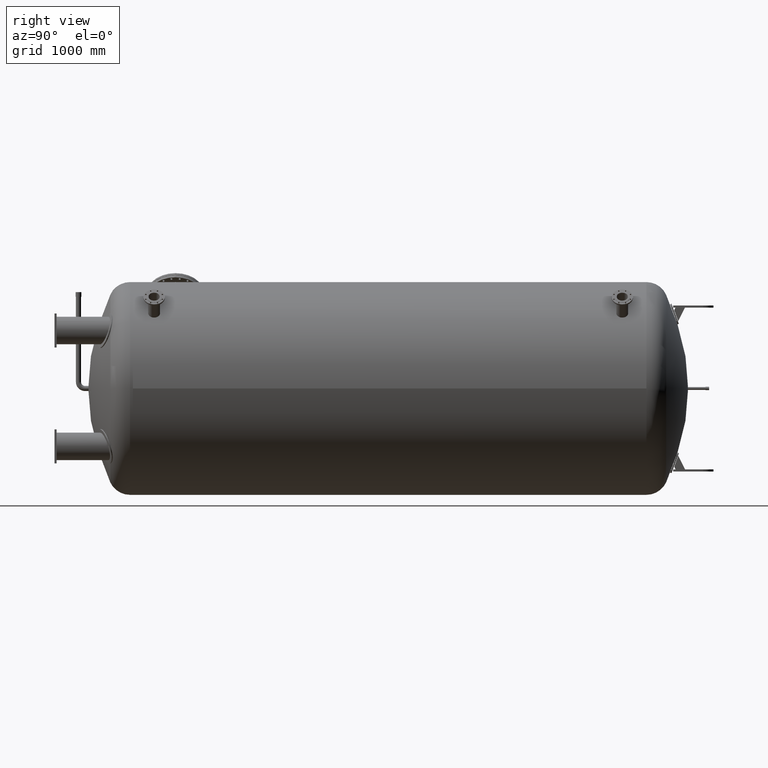
[diagram: clean part render]
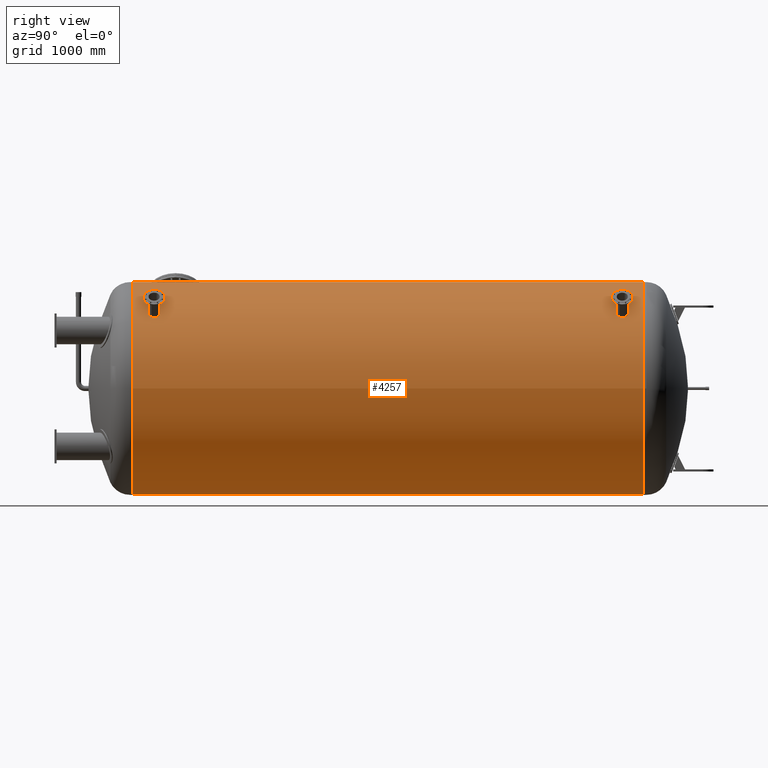
[diagram: same view with one face highlighted and labeled with its STEP entity id]
A machine part, right view. The second image highlights one B-rep face of the part: STEP entity #4257.
In plain terms, the highlighted cylindrical surface (bore or boss wall) has radius 1250 mm, axis along (0, 1, 0).
Its self-contained STEP definition (entity closure, byte-faithful):
#168=B_SPLINE_CURVE_WITH_KNOTS('',3,(#6908,#6909,#6910,#6911,#6912,#6913,
#6914,#6915,#6916,#6917,#6918,#6919,#6920,#6921,#6922,#6923,#6924,#6925),
 .UNSPECIFIED.,.F.,.F.,(4,2,2,2,2,2,2,2,4),(2.02659120059092,2.53323900062413,
3.03988680065735,3.54653460091959,4.05318240118183,4.55983020144407,5.06647800170632,
5.57312580173953,6.07977360177275),.UNSPECIFIED.);
#171=B_SPLINE_CURVE_WITH_KNOTS('',3,(#6965,#6966,#6967,#6968,#6969,#6970,
#6971,#6972,#6973,#6974,#6975,#6976,#6977,#6978,#6979,#6980,#6981,#6982,
#6983),.UNSPECIFIED.,.F.,.F.,(4,2,2,2,3,2,2,2,4),(6.07977360177275,6.58642140180597,
7.09306920183918,7.59971700210142,8.10636480236367,8.61301260262591,9.11966040288815,
9.62630820292137,10.1329560029546),.UNSPECIFIED.);
#172=B_SPLINE_CURVE_WITH_KNOTS('',3,(#6987,#6988,#6989,#6990,#6991,#6992,
#6993,#6994,#6995,#6996,#6997,#6998,#6999,#7000,#7001,#7002,#7003,#7004),
 .UNSPECIFIED.,.F.,.F.,(4,2,2,2,2,2,2,2,4),(2.02659120059092,2.53323900062413,
3.03988680065735,3.54653460091959,4.05318240118183,4.55983020144407,5.06647800170632,
5.57312580173953,6.07977360177275),.UNSPECIFIED.);
#175=B_SPLINE_CURVE_WITH_KNOTS('',3,(#7044,#7045,#7046,#7047,#7048,#7049,
#7050,#7051,#7052,#7053,#7054,#7055,#7056,#7057,#7058,#7059,#7060,#7061,
#7062),.UNSPECIFIED.,.F.,.F.,(4,2,2,2,3,2,2,2,4),(6.07977360177275,6.58642140180597,
7.09306920183918,7.59971700210142,8.10636480236367,8.61301260262591,9.11966040288815,
9.62630820292137,10.1329560029546),.UNSPECIFIED.);
#176=B_SPLINE_CURVE_WITH_KNOTS('',3,(#7066,#7067,#7068,#7069,#7070,#7071,
#7072,#7073,#7074,#7075,#7076,#7077,#7078,#7079,#7080,#7081,#7082,#7083),
 .UNSPECIFIED.,.F.,.F.,(4,2,2,2,2,2,2,2,4),(2.02659120059087,2.53323900062408,
3.03988680065729,3.54653460091952,4.05318240118175,4.559830201444,5.06647800170625,
5.57312580173947,6.07977360177269),.UNSPECIFIED.);
#179=B_SPLINE_CURVE_WITH_KNOTS('',3,(#7123,#7124,#7125,#7126,#7127,#7128,
#7129,#7130,#7131,#7132,#7133,#7134,#7135,#7136,#7137,#7138,#7139,#7140,
#7141),.UNSPECIFIED.,.F.,.F.,(4,2,2,2,3,2,2,2,4),(6.07977360177269,6.5864214018059,
7.09306920183912,7.59971700210137,8.10636480236363,8.61301260262586,9.11966040288809,
9.62630820292129,10.1329560029545),.UNSPECIFIED.);
#180=B_SPLINE_CURVE_WITH_KNOTS('',3,(#7145,#7146,#7147,#7148,#7149,#7150,
#7151,#7152,#7153,#7154,#7155,#7156,#7157,#7158,#7159,#7160,#7161,#7162),
 .UNSPECIFIED.,.F.,.F.,(4,2,2,2,2,2,2,2,4),(2.02659120059092,2.53323900062413,
3.03988680065735,3.54653460091959,4.05318240118183,4.55983020144407,5.06647800170632,
5.57312580173953,6.07977360177275),.UNSPECIFIED.);
#183=B_SPLINE_CURVE_WITH_KNOTS('',3,(#7202,#7203,#7204,#7205,#7206,#7207,
#7208,#7209,#7210,#7211,#7212,#7213,#7214,#7215,#7216,#7217,#7218,#7219,
#7220),.UNSPECIFIED.,.F.,.F.,(4,2,2,2,3,2,2,2,4),(6.07977360177275,6.58642140180597,
7.09306920183918,7.59971700210142,8.10636480236367,8.61301260262591,9.11966040288815,
9.62630820292137,10.1329560029546),.UNSPECIFIED.);
#184=B_SPLINE_CURVE_WITH_KNOTS('',3,(#7224,#7225,#7226,#7227,#7228,#7229,
#7230,#7231,#7232,#7233,#7234,#7235,#7236,#7237,#7238,#7239,#7240,#7241),
 .UNSPECIFIED.,.F.,.F.,(4,2,2,2,2,2,2,2,4),(2.02659120059089,2.53323900062409,
3.03988680065729,3.54653460091954,4.05318240118178,4.55983020144402,5.06647800170626,
5.5731258017395,6.07977360177274),.UNSPECIFIED.);
#187=B_SPLINE_CURVE_WITH_KNOTS('',3,(#7281,#7282,#7283,#7284,#7285,#7286,
#7287,#7288,#7289,#7290,#7291,#7292,#7293,#7294,#7295,#7296,#7297,#7298,
#7299),.UNSPECIFIED.,.F.,.F.,(4,2,2,2,3,2,2,2,4),(6.07977360177274,6.58642140180597,
7.09306920183921,7.59971700210145,8.10636480236369,8.61301260262594,9.11966040288819,
9.62630820292139,10.1329560029546),.UNSPECIFIED.);
#188=B_SPLINE_CURVE_WITH_KNOTS('',3,(#7303,#7304,#7305,#7306,#7307,#7308,
#7309,#7310,#7311,#7312,#7313,#7314,#7315,#7316,#7317,#7318,#7319,#7320,
#7321,#7322,#7323,#7324,#7325,#7326,#7327,#7328,#7329,#7330,#7331,#7332,
#7333,#7334,#7335,#7336),.UNSPECIFIED.,.F.,.F.,(4,2,2,2,2,2,2,2,2,2,2,2,
2,2,2,2,4),(10.5269783282456,11.842850402322,13.1587224763984,14.4745945504747,
15.7904666245511,17.1063391325361,18.4222116405212,19.7380841485062,21.0539566564912,
22.3698291644762,23.6857016724612,25.0015741804462,26.3174466884312,27.6333187625076,
28.949190836584,30.2650629106604,31.5809349847368),.UNSPECIFIED.);
#191=B_SPLINE_CURVE_WITH_KNOTS('',3,(#7408,#7409,#7410,#7411,#7412,#7413,
#7414,#7415,#7416,#7417,#7418,#7419,#7420,#7421,#7422,#7423,#7424,#7425,
#7426,#7427,#7428,#7429,#7430,#7431,#7432,#7433,#7434,#7435,#7436,#7437,
#7438,#7439,#7440,#7441,#7442),.UNSPECIFIED.,.F.,.F.,(4,2,2,2,2,2,2,2,3,
2,2,2,2,2,2,2,4),(31.5809349847368,32.8968070588131,34.2126791328895,35.5285512069659,
36.8444232810423,38.1602957890273,39.4761682970123,40.7920408049973,42.1079133129824,
43.4237858209674,44.7396583289524,46.0555308369374,47.3714033449224,48.6872754189988,
50.0031474930752,51.3190195671516,52.634891641228),.UNSPECIFIED.);
#192=B_SPLINE_CURVE_WITH_KNOTS('',3,(#7446,#7447,#7448,#7449,#7450,#7451,
#7452,#7453,#7454,#7455,#7456,#7457,#7458,#7459,#7460,#7461,#7462,#7463,
#7464,#7465,#7466,#7467,#7468,#7469,#7470,#7471,#7472,#7473,#7474,#7475,
#7476,#7477,#7478,#7479),.UNSPECIFIED.,.F.,.F.,(4,2,2,2,2,2,2,2,2,2,2,2,
2,2,2,2,4),(10.5269783282456,11.842850402322,13.1587224763984,14.4745945504748,
15.7904666245511,17.1063391325362,18.4222116405212,19.7380841485062,21.0539566564912,
22.3698291644763,23.6857016724613,25.0015741804463,26.3174466884314,27.6333187625077,
28.9491908365841,30.2650629106605,31.5809349847369),.UNSPECIFIED.);
#195=B_SPLINE_CURVE_WITH_KNOTS('',3,(#7551,#7552,#7553,#7554,#7555,#7556,
#7557,#7558,#7559,#7560,#7561,#7562,#7563,#7564,#7565,#7566,#7567,#7568,
#7569,#7570,#7571,#7572,#7573,#7574,#7575,#7576,#7577,#7578,#7579,#7580,
#7581,#7582,#7583,#7584,#7585),.UNSPECIFIED.,.F.,.F.,(4,2,2,2,2,2,2,2,3,
2,2,2,2,2,2,2,4),(31.5809349847369,32.8968070588132,34.2126791328896,35.528551206966,
36.8444232810424,38.1602957890274,39.4761682970124,40.7920408049975,42.1079133129825,
43.4237858209675,44.7396583289525,46.0555308369376,47.3714033449226,48.687275418999,
50.0031474930754,51.3190195671517,52.6348916412281),.UNSPECIFIED.);
#196=B_SPLINE_CURVE_WITH_KNOTS('',3,(#7589,#7590,#7591,#7592,#7593,#7594,
#7595,#7596,#7597,#7598,#7599,#7600,#7601,#7602,#7603,#7604,#7605,#7606,
#7607,#7608,#7609,#7610,#7611,#7612,#7613,#7614,#7615,#7616,#7617,#7618,
#7619,#7620,#7621,#7622),.UNSPECIFIED.,.F.,.F.,(4,2,2,2,2,2,2,2,2,2,2,2,
2,2,2,2,4),(10.5269783282456,11.842850402322,13.1587224763984,14.4745945504747,
15.7904666245511,17.1063391325361,18.4222116405212,19.7380841485062,21.0539566564912,
22.3698291644762,23.6857016724612,25.0015741804462,26.3174466884312,27.6333187625076,
28.949190836584,30.2650629106604,31.5809349847368),.UNSPECIFIED.);
#199=B_SPLINE_CURVE_WITH_KNOTS('',3,(#7694,#7695,#7696,#7697,#7698,#7699,
#7700,#7701,#7702,#7703,#7704,#7705,#7706,#7707,#7708,#7709,#7710,#7711,
#7712,#7713,#7714,#7715,#7716,#7717,#7718,#7719,#7720,#7721,#7722,#7723,
#7724,#7725,#7726,#7727,#7728),.UNSPECIFIED.,.F.,.F.,(4,2,2,2,2,2,2,2,3,
2,2,2,2,2,2,2,4),(31.5809349847368,32.8968070588131,34.2126791328895,35.5285512069659,
36.8444232810423,38.1602957890273,39.4761682970123,40.7920408049973,42.1079133129824,
43.4237858209674,44.7396583289524,46.0555308369374,47.3714033449224,48.6872754189988,
50.0031474930752,51.3190195671516,52.634891641228),.UNSPECIFIED.);
#200=B_SPLINE_CURVE_WITH_KNOTS('',3,(#7732,#7733,#7734,#7735,#7736,#7737,
#7738,#7739,#7740,#7741,#7742,#7743,#7744,#7745,#7746,#7747,#7748,#7749,
#7750,#7751,#7752,#7753,#7754,#7755,#7756,#7757,#7758,#7759,#7760,#7761,
#7762,#7763,#7764,#7765),.UNSPECIFIED.,.F.,.F.,(4,2,2,2,2,2,2,2,2,2,2,2,
2,2,2,2,4),(10.5269783282456,11.842850402322,13.1587224763984,14.4745945504748,
15.7904666245511,17.1063391325362,18.4222116405212,19.7380841485062,21.0539566564912,
22.3698291644763,23.6857016724613,25.0015741804463,26.3174466884314,27.6333187625077,
28.9491908365841,30.2650629106605,31.5809349847369),.UNSPECIFIED.);
#203=B_SPLINE_CURVE_WITH_KNOTS('',3,(#7837,#7838,#7839,#7840,#7841,#7842,
#7843,#7844,#7845,#7846,#7847,#7848,#7849,#7850,#7851,#7852,#7853,#7854,
#7855,#7856,#7857,#7858,#7859,#7860,#7861,#7862,#7863,#7864,#7865,#7866,
#7867,#7868,#7869,#7870,#7871),.UNSPECIFIED.,.F.,.F.,(4,2,2,2,2,2,2,2,3,
2,2,2,2,2,2,2,4),(31.5809349847369,32.8968070588132,34.2126791328896,35.528551206966,
36.8444232810424,38.1602957890274,39.4761682970124,40.7920408049975,42.1079133129825,
43.4237858209675,44.7396583289525,46.0555308369376,47.3714033449226,48.687275418999,
50.0031474930754,51.3190195671517,52.6348916412281),.UNSPECIFIED.);
#204=B_SPLINE_CURVE_WITH_KNOTS('',3,(#7875,#7876,#7877,#7878,#7879,#7880,
#7881,#7882,#7883,#7884,#7885,#7886,#7887,#7888,#7889,#7890,#7891,#7892,
#7893,#7894,#7895,#7896,#7897,#7898,#7899,#7900,#7901,#7902,#7903,#7904,
#7905,#7906,#7907,#7908,#7909,#7910,#7911,#7912,#7913,#7914,#7915,#7916,
#7917,#7918,#7919,#7920,#7921,#7922,#7923,#7924,#7925,#7926,#7927,#7928,
#7929,#7930,#7931,#7932,#7933,#7934,#7935,#7936,#7937,#7938,#7939,#7940),
 .UNSPECIFIED.,.F.,.F.,(4,2,2,2,2,2,2,2,2,2,2,2,2,2,2,2,2,2,2,2,2,2,2,2,
2,2,2,2,2,2,2,2,4),(38.3865947959878,40.7856852553044,43.184775714621,45.5838661739376,
47.9829566332542,50.3820470925708,52.7811375518874,55.180228011204,57.5793184705206,
59.9785523607025,62.3777862508843,64.7770201410662,67.1762540312481,69.57548792143,
71.9747218116119,74.3739557017938,76.7731895919757,79.1724234821576,81.5716573723395,
83.9708912625214,86.3701251527033,88.7693590428851,91.168592933067,93.5678268232489,
95.9670607134308,98.3661511727474,100.765241632064,103.164332091381,105.563422550697,
107.962513010014,110.36160346933,112.760693928647,115.159784387964),
 .UNSPECIFIED.);
#207=B_SPLINE_CURVE_WITH_KNOTS('',3,(#8076,#8077,#8078,#8079,#8080,#8081,
#8082,#8083,#8084,#8085,#8086,#8087,#8088,#8089,#8090,#8091,#8092,#8093,
#8094,#8095,#8096,#8097,#8098,#8099,#8100,#8101,#8102,#8103,#8104,#8105,
#8106,#8107,#8108,#8109,#8110,#8111,#8112,#8113,#8114,#8115,#8116,#8117,
#8118,#8119,#8120,#8121,#8122,#8123,#8124,#8125,#8126,#8127,#8128,#8129,
#8130,#8131,#8132,#8133,#8134,#8135,#8136,#8137,#8138,#8139,#8140,#8141,
#8142),.UNSPECIFIED.,.F.,.F.,(4,2,2,2,2,2,2,2,2,2,2,2,2,2,2,2,3,2,2,2,2,
2,2,2,2,2,2,2,2,2,2,2,4),(115.159784387964,117.55887484728,119.957965306597,
122.357055765913,124.75614622523,127.155236684546,129.554327143863,131.95341760318,
134.352508062496,136.751741952678,139.15097584286,141.550209733042,143.949443623224,
146.348677513406,148.747911403588,151.147145293769,153.546379183951,155.945613074133,
158.344846964315,160.744080854497,163.143314744679,165.542548634861,167.941782525043,
170.341016415225,172.740250305407,175.139340764723,177.53843122404,179.937521683356,
182.336612142673,184.735702601989,187.134793061306,189.533883520623,191.932973979939),
 .UNSPECIFIED.);
#410=FACE_BOUND('',#847,.T.);
#411=FACE_BOUND('',#848,.T.);
#412=FACE_BOUND('',#849,.T.);
#413=FACE_BOUND('',#850,.T.);
#414=FACE_BOUND('',#851,.T.);
#415=FACE_BOUND('',#852,.T.);
#416=FACE_BOUND('',#853,.T.);
#417=FACE_BOUND('',#854,.T.);
#418=FACE_BOUND('',#855,.T.);
#419=FACE_BOUND('',#856,.T.);
#602=FACE_OUTER_BOUND('',#846,.T.);
#846=EDGE_LOOP('',(#3031,#3032,#3033,#3034,#3035,#3036));
#847=EDGE_LOOP('',(#3037,#3038));
#848=EDGE_LOOP('',(#3039,#3040));
#849=EDGE_LOOP('',(#3041,#3042));
#850=EDGE_LOOP('',(#3043,#3044));
#851=EDGE_LOOP('',(#3045,#3046));
#852=EDGE_LOOP('',(#3047,#3048));
#853=EDGE_LOOP('',(#3049,#3050));
#854=EDGE_LOOP('',(#3051,#3052));
#855=EDGE_LOOP('',(#3053,#3054));
#856=EDGE_LOOP('',(#3055,#3056));
#1226=LINE('',#8163,#1452);
#1452=VECTOR('',#5607,1250.);
#1686=CIRCLE('',#4969,1250.);
#1687=CIRCLE('',#4970,1250.);
#1688=CIRCLE('',#4972,1250.);
#1689=CIRCLE('',#4973,1250.);
#1953=VERTEX_POINT('',#6906);
#1954=VERTEX_POINT('',#6907);
#1957=VERTEX_POINT('',#6985);
#1958=VERTEX_POINT('',#6986);
#1961=VERTEX_POINT('',#7064);
#1962=VERTEX_POINT('',#7065);
#1965=VERTEX_POINT('',#7143);
#1966=VERTEX_POINT('',#7144);
#1969=VERTEX_POINT('',#7222);
#1970=VERTEX_POINT('',#7223);
#1973=VERTEX_POINT('',#7301);
#1974=VERTEX_POINT('',#7302);
#1977=VERTEX_POINT('',#7444);
#1978=VERTEX_POINT('',#7445);
#1981=VERTEX_POINT('',#7587);
#1982=VERTEX_POINT('',#7588);
#1985=VERTEX_POINT('',#7730);
#1986=VERTEX_POINT('',#7731);
#1989=VERTEX_POINT('',#7873);
#1990=VERTEX_POINT('',#7874);
#1997=VERTEX_POINT('',#8154);
#1998=VERTEX_POINT('',#8155);
#1999=VERTEX_POINT('',#8159);
#2000=VERTEX_POINT('',#8160);
#2351=EDGE_CURVE('',#1953,#1954,#168,.T.);
#2355=EDGE_CURVE('',#1954,#1953,#171,.T.);
#2356=EDGE_CURVE('',#1957,#1958,#172,.T.);
#2360=EDGE_CURVE('',#1958,#1957,#175,.T.);
#2361=EDGE_CURVE('',#1961,#1962,#176,.T.);
#2365=EDGE_CURVE('',#1962,#1961,#179,.T.);
#2366=EDGE_CURVE('',#1965,#1966,#180,.T.);
#2370=EDGE_CURVE('',#1966,#1965,#183,.T.);
#2371=EDGE_CURVE('',#1969,#1970,#184,.T.);
#2375=EDGE_CURVE('',#1970,#1969,#187,.T.);
#2376=EDGE_CURVE('',#1973,#1974,#188,.T.);
#2380=EDGE_CURVE('',#1974,#1973,#191,.T.);
#2381=EDGE_CURVE('',#1977,#1978,#192,.T.);
#2385=EDGE_CURVE('',#1978,#1977,#195,.T.);
#2386=EDGE_CURVE('',#1981,#1982,#196,.T.);
#2390=EDGE_CURVE('',#1982,#1981,#199,.T.);
#2391=EDGE_CURVE('',#1985,#1986,#200,.T.);
#2395=EDGE_CURVE('',#1986,#1985,#203,.T.);
#2396=EDGE_CURVE('',#1989,#1990,#204,.T.);
#2400=EDGE_CURVE('',#1990,#1989,#207,.T.);
#2406=EDGE_CURVE('',#1997,#1998,#1686,.T.);
#2407=EDGE_CURVE('',#1998,#1997,#1687,.T.);
#2408=EDGE_CURVE('',#1999,#2000,#1688,.T.);
#2409=EDGE_CURVE('',#2000,#1999,#1689,.T.);
#2410=EDGE_CURVE('',#2000,#1998,#1226,.T.);
#3031=ORIENTED_EDGE('',*,*,#2408,.F.);
#3032=ORIENTED_EDGE('',*,*,#2409,.F.);
#3033=ORIENTED_EDGE('',*,*,#2410,.T.);
#3034=ORIENTED_EDGE('',*,*,#2407,.T.);
#3035=ORIENTED_EDGE('',*,*,#2406,.T.);
#3036=ORIENTED_EDGE('',*,*,#2410,.F.);
#3037=ORIENTED_EDGE('',*,*,#2351,.T.);
#3038=ORIENTED_EDGE('',*,*,#2355,.T.);
#3039=ORIENTED_EDGE('',*,*,#2356,.T.);
#3040=ORIENTED_EDGE('',*,*,#2360,.T.);
#3041=ORIENTED_EDGE('',*,*,#2361,.T.);
#3042=ORIENTED_EDGE('',*,*,#2365,.T.);
#3043=ORIENTED_EDGE('',*,*,#2366,.T.);
#3044=ORIENTED_EDGE('',*,*,#2370,.T.);
#3045=ORIENTED_EDGE('',*,*,#2371,.T.);
#3046=ORIENTED_EDGE('',*,*,#2375,.T.);
#3047=ORIENTED_EDGE('',*,*,#2376,.T.);
#3048=ORIENTED_EDGE('',*,*,#2380,.T.);
#3049=ORIENTED_EDGE('',*,*,#2381,.T.);
#3050=ORIENTED_EDGE('',*,*,#2385,.T.);
#3051=ORIENTED_EDGE('',*,*,#2386,.T.);
#3052=ORIENTED_EDGE('',*,*,#2390,.T.);
#3053=ORIENTED_EDGE('',*,*,#2391,.T.);
#3054=ORIENTED_EDGE('',*,*,#2395,.T.);
#3055=ORIENTED_EDGE('',*,*,#2396,.T.);
#3056=ORIENTED_EDGE('',*,*,#2400,.T.);
#4051=CYLINDRICAL_SURFACE('',#4971,1250.);
#4257=ADVANCED_FACE('',(#602,#410,#411,#412,#413,#414,#415,#416,#417,#418,
#419),#4051,.T.);
#4969=AXIS2_PLACEMENT_3D('',#8156,#5597,#5598);
#4970=AXIS2_PLACEMENT_3D('',#8157,#5599,#5600);
#4971=AXIS2_PLACEMENT_3D('',#8158,#5601,#5602);
#4972=AXIS2_PLACEMENT_3D('',#8161,#5603,#5604);
#4973=AXIS2_PLACEMENT_3D('',#8162,#5605,#5606);
#5597=DIRECTION('center_axis',(0.,1.,0.));
#5598=DIRECTION('ref_axis',(1.,0.,0.));
#5599=DIRECTION('center_axis',(0.,1.,0.));
#5600=DIRECTION('ref_axis',(1.,0.,0.));
#5601=DIRECTION('center_axis',(0.,1.,0.));
#5602=DIRECTION('ref_axis',(-1.,0.,0.));
#5603=DIRECTION('center_axis',(0.,1.,0.));
#5604=DIRECTION('ref_axis',(1.,0.,0.));
#5605=DIRECTION('center_axis',(0.,1.,0.));
#5606=DIRECTION('ref_axis',(1.,0.,0.));
#5607=DIRECTION('',(0.,-1.,0.));
#6906=CARTESIAN_POINT('',(-1174.61577598239,4413.45,427.525179157086));
#6907=CARTESIAN_POINT('',(-1174.61577598239,4386.55,427.525179157086));
#6908=CARTESIAN_POINT('Ctrl Pts',(-1174.61577598239,4413.45,427.525179157086));
#6909=CARTESIAN_POINT('Ctrl Pts',(-1174.03816347178,4413.45,429.112156487181));
#6910=CARTESIAN_POINT('Ctrl Pts',(-1173.41850657439,4413.11248509073,430.803613946816));
#6911=CARTESIAN_POINT('Ctrl Pts',(-1172.27229850495,4411.73985935027,433.912898539369));
#6912=CARTESIAN_POINT('Ctrl Pts',(-1171.74593075746,4410.70474924084,435.330793605555));
#6913=CARTESIAN_POINT('Ctrl Pts',(-1170.91199901006,4408.31642317254,437.568870787405));
#6914=CARTESIAN_POINT('Ctrl Pts',(-1170.54887854486,4406.80400926984,438.538246917259));
#6915=CARTESIAN_POINT('Ctrl Pts',(-1170.06658997766,4403.49021123444,439.823426035904));
#6916=CARTESIAN_POINT('Ctrl Pts',(-1169.94760598867,4401.68882600087,440.139295270681));
#6917=CARTESIAN_POINT('Ctrl Pts',(-1169.94760598867,4398.31117399913,440.139295270681));
#6918=CARTESIAN_POINT('Ctrl Pts',(-1170.06658997766,4396.50978876556,439.823426035904));
#6919=CARTESIAN_POINT('Ctrl Pts',(-1170.54887854486,4393.19599073016,438.538246917259));
#6920=CARTESIAN_POINT('Ctrl Pts',(-1170.91199901006,4391.68357682746,437.568870787405));
#6921=CARTESIAN_POINT('Ctrl Pts',(-1171.74593075746,4389.29525075916,435.330793605555));
#6922=CARTESIAN_POINT('Ctrl Pts',(-1172.27229850495,4388.26014064973,433.912898539369));
#6923=CARTESIAN_POINT('Ctrl Pts',(-1173.41850657439,4386.88751490927,430.803613946816));
#6924=CARTESIAN_POINT('Ctrl Pts',(-1174.03816347178,4386.55,429.112156487181));
#6925=CARTESIAN_POINT('Ctrl Pts',(-1174.61577598239,4386.55,427.525179157086));
#6965=CARTESIAN_POINT('Ctrl Pts',(-1174.61577598239,4386.55,427.525179157086));
#6966=CARTESIAN_POINT('Ctrl Pts',(-1175.193388493,4386.55,425.93820182699));
#6967=CARTESIAN_POINT('Ctrl Pts',(-1175.80595166748,4386.88751490927,424.244162463367));
#6968=CARTESIAN_POINT('Ctrl Pts',(-1176.9265149563,4388.26014064973,421.125543934006));
#6969=CARTESIAN_POINT('Ctrl Pts',(-1177.43469924869,4389.29525075916,419.701030631406));
#6970=CARTESIAN_POINT('Ctrl Pts',(-1178.23447874967,4391.68357682746,417.450523048429));
#6971=CARTESIAN_POINT('Ctrl Pts',(-1178.57941530051,4393.19599073016,416.474528515006));
#6972=CARTESIAN_POINT('Ctrl Pts',(-1179.03605803732,4396.50978876556,415.180015077468));
#6973=CARTESIAN_POINT('Ctrl Pts',(-1179.14794784413,4398.31117399913,414.86156377154));
#6974=CARTESIAN_POINT('Ctrl Pts',(-1179.14794784413,4400.,414.86156377154));
#6975=CARTESIAN_POINT('Ctrl Pts',(-1179.14794784413,4401.68882600087,414.86156377154));
#6976=CARTESIAN_POINT('Ctrl Pts',(-1179.03605803732,4403.49021123444,415.180015077468));
#6977=CARTESIAN_POINT('Ctrl Pts',(-1178.57941530051,4406.80400926984,416.474528515006));
#6978=CARTESIAN_POINT('Ctrl Pts',(-1178.23447874967,4408.31642317254,417.450523048429));
#6979=CARTESIAN_POINT('Ctrl Pts',(-1177.43469924869,4410.70474924084,419.701030631406));
#6980=CARTESIAN_POINT('Ctrl Pts',(-1176.9265149563,4411.73985935027,421.125543934006));
#6981=CARTESIAN_POINT('Ctrl Pts',(-1175.80595166748,4413.11248509073,424.244162463367));
#6982=CARTESIAN_POINT('Ctrl Pts',(-1175.193388493,4413.45,425.93820182699));
#6983=CARTESIAN_POINT('Ctrl Pts',(-1174.61577598239,4413.45,427.525179157086));
#6985=CARTESIAN_POINT('',(-1174.61577598239,3013.45,427.525179157086));
#6986=CARTESIAN_POINT('',(-1174.61577598239,2986.55,427.525179157086));
#6987=CARTESIAN_POINT('Ctrl Pts',(-1174.61577598239,3013.45,427.525179157086));
#6988=CARTESIAN_POINT('Ctrl Pts',(-1174.03816347178,3013.45,429.112156487181));
#6989=CARTESIAN_POINT('Ctrl Pts',(-1173.41850657439,3013.11248509073,430.803613946816));
#6990=CARTESIAN_POINT('Ctrl Pts',(-1172.27229850495,3011.73985935027,433.912898539369));
#6991=CARTESIAN_POINT('Ctrl Pts',(-1171.74593075746,3010.70474924084,435.330793605555));
#6992=CARTESIAN_POINT('Ctrl Pts',(-1170.91199901006,3008.31642317254,437.568870787405));
#6993=CARTESIAN_POINT('Ctrl Pts',(-1170.54887854486,3006.80400926984,438.538246917259));
#6994=CARTESIAN_POINT('Ctrl Pts',(-1170.06658997766,3003.49021123444,439.823426035904));
#6995=CARTESIAN_POINT('Ctrl Pts',(-1169.94760598867,3001.68882600087,440.139295270681));
#6996=CARTESIAN_POINT('Ctrl Pts',(-1169.94760598867,2998.31117399913,440.139295270681));
#6997=CARTESIAN_POINT('Ctrl Pts',(-1170.06658997766,2996.50978876556,439.823426035904));
#6998=CARTESIAN_POINT('Ctrl Pts',(-1170.54887854486,2993.19599073016,438.538246917259));
#6999=CARTESIAN_POINT('Ctrl Pts',(-1170.91199901006,2991.68357682746,437.568870787405));
#7000=CARTESIAN_POINT('Ctrl Pts',(-1171.74593075746,2989.29525075916,435.330793605555));
#7001=CARTESIAN_POINT('Ctrl Pts',(-1172.27229850495,2988.26014064973,433.912898539369));
#7002=CARTESIAN_POINT('Ctrl Pts',(-1173.41850657439,2986.88751490927,430.803613946816));
#7003=CARTESIAN_POINT('Ctrl Pts',(-1174.03816347178,2986.55,429.112156487181));
#7004=CARTESIAN_POINT('Ctrl Pts',(-1174.61577598239,2986.55,427.525179157086));
#7044=CARTESIAN_POINT('Ctrl Pts',(-1174.61577598239,2986.55,427.525179157086));
#7045=CARTESIAN_POINT('Ctrl Pts',(-1175.193388493,2986.55,425.93820182699));
#7046=CARTESIAN_POINT('Ctrl Pts',(-1175.80595166748,2986.88751490927,424.244162463367));
#7047=CARTESIAN_POINT('Ctrl Pts',(-1176.9265149563,2988.26014064973,421.125543934006));
#7048=CARTESIAN_POINT('Ctrl Pts',(-1177.43469924869,2989.29525075916,419.701030631406));
#7049=CARTESIAN_POINT('Ctrl Pts',(-1178.23447874967,2991.68357682746,417.450523048429));
#7050=CARTESIAN_POINT('Ctrl Pts',(-1178.57941530051,2993.19599073016,416.474528515006));
#7051=CARTESIAN_POINT('Ctrl Pts',(-1179.03605803732,2996.50978876556,415.180015077468));
#7052=CARTESIAN_POINT('Ctrl Pts',(-1179.14794784413,2998.31117399913,414.86156377154));
#7053=CARTESIAN_POINT('Ctrl Pts',(-1179.14794784413,3000.,414.86156377154));
#7054=CARTESIAN_POINT('Ctrl Pts',(-1179.14794784413,3001.68882600087,414.86156377154));
#7055=CARTESIAN_POINT('Ctrl Pts',(-1179.03605803732,3003.49021123444,415.180015077468));
#7056=CARTESIAN_POINT('Ctrl Pts',(-1178.57941530051,3006.80400926984,416.474528515006));
#7057=CARTESIAN_POINT('Ctrl Pts',(-1178.23447874967,3008.31642317254,417.450523048429));
#7058=CARTESIAN_POINT('Ctrl Pts',(-1177.43469924869,3010.70474924084,419.701030631406));
#7059=CARTESIAN_POINT('Ctrl Pts',(-1176.9265149563,3011.73985935027,421.125543934006));
#7060=CARTESIAN_POINT('Ctrl Pts',(-1175.80595166748,3013.11248509073,424.244162463367));
#7061=CARTESIAN_POINT('Ctrl Pts',(-1175.193388493,3013.45,425.93820182699));
#7062=CARTESIAN_POINT('Ctrl Pts',(-1174.61577598239,3013.45,427.525179157086));
#7064=CARTESIAN_POINT('',(-1174.61577598239,1613.45,427.525179157086));
#7065=CARTESIAN_POINT('',(-1174.61577598239,1586.55,427.525179157086));
#7066=CARTESIAN_POINT('Ctrl Pts',(-1174.61577598239,1613.45,427.525179157086));
#7067=CARTESIAN_POINT('Ctrl Pts',(-1174.03816347178,1613.45,429.112156487181));
#7068=CARTESIAN_POINT('Ctrl Pts',(-1173.41850657439,1613.11248509073,430.803613946816));
#7069=CARTESIAN_POINT('Ctrl Pts',(-1172.27229850495,1611.73985935027,433.912898539369));
#7070=CARTESIAN_POINT('Ctrl Pts',(-1171.74593075746,1610.70474924084,435.330793605555));
#7071=CARTESIAN_POINT('Ctrl Pts',(-1170.91199901006,1608.31642317254,437.568870787405));
#7072=CARTESIAN_POINT('Ctrl Pts',(-1170.54887854486,1606.80400926984,438.53824691726));
#7073=CARTESIAN_POINT('Ctrl Pts',(-1170.06658997766,1603.49021123444,439.823426035904));
#7074=CARTESIAN_POINT('Ctrl Pts',(-1169.94760598867,1601.68882600087,440.139295270681));
#7075=CARTESIAN_POINT('Ctrl Pts',(-1169.94760598867,1598.31117399913,440.139295270681));
#7076=CARTESIAN_POINT('Ctrl Pts',(-1170.06658997766,1596.50978876556,439.823426035904));
#7077=CARTESIAN_POINT('Ctrl Pts',(-1170.54887854486,1593.19599073016,438.53824691726));
#7078=CARTESIAN_POINT('Ctrl Pts',(-1170.91199901006,1591.68357682746,437.568870787405));
#7079=CARTESIAN_POINT('Ctrl Pts',(-1171.74593075746,1589.29525075916,435.330793605555));
#7080=CARTESIAN_POINT('Ctrl Pts',(-1172.27229850495,1588.26014064973,433.912898539369));
#7081=CARTESIAN_POINT('Ctrl Pts',(-1173.41850657439,1586.88751490927,430.803613946816));
#7082=CARTESIAN_POINT('Ctrl Pts',(-1174.03816347178,1586.55,429.112156487181));
#7083=CARTESIAN_POINT('Ctrl Pts',(-1174.61577598239,1586.55,427.525179157086));
#7123=CARTESIAN_POINT('Ctrl Pts',(-1174.61577598239,1586.55,427.525179157086));
#7124=CARTESIAN_POINT('Ctrl Pts',(-1175.193388493,1586.55,425.93820182699));
#7125=CARTESIAN_POINT('Ctrl Pts',(-1175.80595166748,1586.88751490927,424.244162463367));
#7126=CARTESIAN_POINT('Ctrl Pts',(-1176.9265149563,1588.26014064973,421.125543934006));
#7127=CARTESIAN_POINT('Ctrl Pts',(-1177.43469924869,1589.29525075916,419.701030631406));
#7128=CARTESIAN_POINT('Ctrl Pts',(-1178.23447874967,1591.68357682746,417.450523048429));
#7129=CARTESIAN_POINT('Ctrl Pts',(-1178.57941530051,1593.19599073016,416.474528515005));
#7130=CARTESIAN_POINT('Ctrl Pts',(-1179.03605803732,1596.50978876556,415.180015077467));
#7131=CARTESIAN_POINT('Ctrl Pts',(-1179.14794784413,1598.31117399913,414.86156377154));
#7132=CARTESIAN_POINT('Ctrl Pts',(-1179.14794784413,1600.,414.86156377154));
#7133=CARTESIAN_POINT('Ctrl Pts',(-1179.14794784413,1601.68882600087,414.86156377154));
#7134=CARTESIAN_POINT('Ctrl Pts',(-1179.03605803732,1603.49021123444,415.180015077468));
#7135=CARTESIAN_POINT('Ctrl Pts',(-1178.57941530051,1606.80400926984,416.474528515005));
#7136=CARTESIAN_POINT('Ctrl Pts',(-1178.23447874967,1608.31642317254,417.450523048429));
#7137=CARTESIAN_POINT('Ctrl Pts',(-1177.43469924869,1610.70474924084,419.701030631406));
#7138=CARTESIAN_POINT('Ctrl Pts',(-1176.9265149563,1611.73985935027,421.125543934006));
#7139=CARTESIAN_POINT('Ctrl Pts',(-1175.80595166748,1613.11248509073,424.244162463367));
#7140=CARTESIAN_POINT('Ctrl Pts',(-1175.193388493,1613.45,425.93820182699));
#7141=CARTESIAN_POINT('Ctrl Pts',(-1174.61577598239,1613.45,427.525179157086));
#7143=CARTESIAN_POINT('',(-1174.61577598239,5813.45,427.525179157086));
#7144=CARTESIAN_POINT('',(-1174.61577598239,5786.55,427.525179157086));
#7145=CARTESIAN_POINT('Ctrl Pts',(-1174.61577598239,5813.45,427.525179157086));
#7146=CARTESIAN_POINT('Ctrl Pts',(-1174.03816347178,5813.45,429.112156487181));
#7147=CARTESIAN_POINT('Ctrl Pts',(-1173.41850657439,5813.11248509073,430.803613946816));
#7148=CARTESIAN_POINT('Ctrl Pts',(-1172.27229850495,5811.73985935027,433.912898539369));
#7149=CARTESIAN_POINT('Ctrl Pts',(-1171.74593075746,5810.70474924084,435.330793605555));
#7150=CARTESIAN_POINT('Ctrl Pts',(-1170.91199901006,5808.31642317254,437.568870787405));
#7151=CARTESIAN_POINT('Ctrl Pts',(-1170.54887854486,5806.80400926984,438.538246917259));
#7152=CARTESIAN_POINT('Ctrl Pts',(-1170.06658997766,5803.49021123444,439.823426035904));
#7153=CARTESIAN_POINT('Ctrl Pts',(-1169.94760598867,5801.68882600087,440.139295270681));
#7154=CARTESIAN_POINT('Ctrl Pts',(-1169.94760598867,5798.31117399913,440.139295270681));
#7155=CARTESIAN_POINT('Ctrl Pts',(-1170.06658997766,5796.50978876556,439.823426035904));
#7156=CARTESIAN_POINT('Ctrl Pts',(-1170.54887854486,5793.19599073016,438.538246917259));
#7157=CARTESIAN_POINT('Ctrl Pts',(-1170.91199901006,5791.68357682746,437.568870787405));
#7158=CARTESIAN_POINT('Ctrl Pts',(-1171.74593075746,5789.29525075916,435.330793605555));
#7159=CARTESIAN_POINT('Ctrl Pts',(-1172.27229850495,5788.26014064973,433.912898539369));
#7160=CARTESIAN_POINT('Ctrl Pts',(-1173.41850657439,5786.88751490927,430.803613946816));
#7161=CARTESIAN_POINT('Ctrl Pts',(-1174.03816347178,5786.55,429.112156487181));
#7162=CARTESIAN_POINT('Ctrl Pts',(-1174.61577598239,5786.55,427.525179157086));
#7202=CARTESIAN_POINT('Ctrl Pts',(-1174.61577598239,5786.55,427.525179157086));
#7203=CARTESIAN_POINT('Ctrl Pts',(-1175.193388493,5786.55,425.93820182699));
#7204=CARTESIAN_POINT('Ctrl Pts',(-1175.80595166748,5786.88751490927,424.244162463367));
#7205=CARTESIAN_POINT('Ctrl Pts',(-1176.9265149563,5788.26014064973,421.125543934006));
#7206=CARTESIAN_POINT('Ctrl Pts',(-1177.43469924869,5789.29525075916,419.701030631406));
#7207=CARTESIAN_POINT('Ctrl Pts',(-1178.23447874967,5791.68357682746,417.450523048429));
#7208=CARTESIAN_POINT('Ctrl Pts',(-1178.57941530051,5793.19599073016,416.474528515006));
#7209=CARTESIAN_POINT('Ctrl Pts',(-1179.03605803732,5796.50978876556,415.180015077467));
#7210=CARTESIAN_POINT('Ctrl Pts',(-1179.14794784413,5798.31117399913,414.86156377154));
#7211=CARTESIAN_POINT('Ctrl Pts',(-1179.14794784413,5800.,414.86156377154));
#7212=CARTESIAN_POINT('Ctrl Pts',(-1179.14794784413,5801.68882600087,414.86156377154));
#7213=CARTESIAN_POINT('Ctrl Pts',(-1179.03605803732,5803.49021123444,415.180015077467));
#7214=CARTESIAN_POINT('Ctrl Pts',(-1178.57941530051,5806.80400926984,416.474528515006));
#7215=CARTESIAN_POINT('Ctrl Pts',(-1178.23447874967,5808.31642317254,417.450523048429));
#7216=CARTESIAN_POINT('Ctrl Pts',(-1177.43469924869,5810.70474924084,419.701030631406));
#7217=CARTESIAN_POINT('Ctrl Pts',(-1176.9265149563,5811.73985935027,421.125543934006));
#7218=CARTESIAN_POINT('Ctrl Pts',(-1175.80595166748,5813.11248509073,424.244162463367));
#7219=CARTESIAN_POINT('Ctrl Pts',(-1175.193388493,5813.45,425.93820182699));
#7220=CARTESIAN_POINT('Ctrl Pts',(-1174.61577598239,5813.45,427.525179157086));
#7222=CARTESIAN_POINT('',(-1174.61577598239,213.45,427.525179157086));
#7223=CARTESIAN_POINT('',(-1174.61577598239,186.55,427.525179157086));
#7224=CARTESIAN_POINT('Ctrl Pts',(-1174.61577598239,213.45,427.525179157086));
#7225=CARTESIAN_POINT('Ctrl Pts',(-1174.03816347178,213.45,429.112156487181));
#7226=CARTESIAN_POINT('Ctrl Pts',(-1173.41850657439,213.112485090728,430.803613946816));
#7227=CARTESIAN_POINT('Ctrl Pts',(-1172.27229850495,211.739859350267,433.912898539369));
#7228=CARTESIAN_POINT('Ctrl Pts',(-1171.74593075746,210.70474924084,435.330793605555));
#7229=CARTESIAN_POINT('Ctrl Pts',(-1170.91199901006,208.316423172539,437.568870787405));
#7230=CARTESIAN_POINT('Ctrl Pts',(-1170.54887854486,206.804009269839,438.538246917259));
#7231=CARTESIAN_POINT('Ctrl Pts',(-1170.06658997766,203.490211234443,439.823426035904));
#7232=CARTESIAN_POINT('Ctrl Pts',(-1169.94760598867,201.688826000875,440.139295270681));
#7233=CARTESIAN_POINT('Ctrl Pts',(-1169.94760598867,198.311173999126,440.139295270681));
#7234=CARTESIAN_POINT('Ctrl Pts',(-1170.06658997766,196.509788765558,439.823426035904));
#7235=CARTESIAN_POINT('Ctrl Pts',(-1170.54887854486,193.195990730162,438.53824691726));
#7236=CARTESIAN_POINT('Ctrl Pts',(-1170.91199901006,191.683576827462,437.568870787405));
#7237=CARTESIAN_POINT('Ctrl Pts',(-1171.74593075746,189.295250759161,435.330793605555));
#7238=CARTESIAN_POINT('Ctrl Pts',(-1172.27229850495,188.260140649733,433.912898539369));
#7239=CARTESIAN_POINT('Ctrl Pts',(-1173.41850657439,186.887514909272,430.803613946816));
#7240=CARTESIAN_POINT('Ctrl Pts',(-1174.03816347178,186.55,429.112156487181));
#7241=CARTESIAN_POINT('Ctrl Pts',(-1174.61577598239,186.55,427.525179157086));
#7281=CARTESIAN_POINT('Ctrl Pts',(-1174.61577598239,186.55,427.525179157086));
#7282=CARTESIAN_POINT('Ctrl Pts',(-1175.193388493,186.55,425.93820182699));
#7283=CARTESIAN_POINT('Ctrl Pts',(-1175.80595166748,186.887514909272,424.244162463367));
#7284=CARTESIAN_POINT('Ctrl Pts',(-1176.9265149563,188.260140649734,421.125543934006));
#7285=CARTESIAN_POINT('Ctrl Pts',(-1177.43469924869,189.295250759161,419.701030631406));
#7286=CARTESIAN_POINT('Ctrl Pts',(-1178.23447874967,191.683576827462,417.450523048429));
#7287=CARTESIAN_POINT('Ctrl Pts',(-1178.57941530051,193.195990730162,416.474528515005));
#7288=CARTESIAN_POINT('Ctrl Pts',(-1179.03605803732,196.509788765559,415.180015077467));
#7289=CARTESIAN_POINT('Ctrl Pts',(-1179.14794784413,198.311173999126,414.86156377154));
#7290=CARTESIAN_POINT('Ctrl Pts',(-1179.14794784413,200.000000000001,414.86156377154));
#7291=CARTESIAN_POINT('Ctrl Pts',(-1179.14794784413,201.688826000875,414.86156377154));
#7292=CARTESIAN_POINT('Ctrl Pts',(-1179.03605803732,203.490211234443,415.180015077468));
#7293=CARTESIAN_POINT('Ctrl Pts',(-1178.57941530051,206.804009269839,416.474528515005));
#7294=CARTESIAN_POINT('Ctrl Pts',(-1178.23447874967,208.316423172539,417.450523048429));
#7295=CARTESIAN_POINT('Ctrl Pts',(-1177.43469924869,210.70474924084,419.701030631406));
#7296=CARTESIAN_POINT('Ctrl Pts',(-1176.9265149563,211.739859350267,421.125543934007));
#7297=CARTESIAN_POINT('Ctrl Pts',(-1175.80595166748,213.112485090728,424.244162463367));
#7298=CARTESIAN_POINT('Ctrl Pts',(-1175.193388493,213.45,425.93820182699));
#7299=CARTESIAN_POINT('Ctrl Pts',(-1174.61577598239,213.45,427.525179157086));
#7301=CARTESIAN_POINT('',(883.883476483184,5819.85,883.883476483184));
#7302=CARTESIAN_POINT('',(883.883476483184,5680.15,883.883476483184));
#7303=CARTESIAN_POINT('Ctrl Pts',(883.883476483184,5819.85,883.883476483184));
#7304=CARTESIAN_POINT('Ctrl Pts',(886.985016705696,5819.85,880.781936260673));
#7305=CARTESIAN_POINT('Ctrl Pts',(890.175532967176,5819.43019338871,877.557902856008));
#7306=CARTESIAN_POINT('Ctrl Pts',(896.486626522886,5817.6620974564,871.109683578392));
#7307=CARTESIAN_POINT('Ctrl Pts',(899.607301328383,5816.3141893718,867.885488614391));
#7308=CARTESIAN_POINT('Ctrl Pts',(905.561470998272,5812.74968048487,861.671016220499));
#7309=CARTESIAN_POINT('Ctrl Pts',(908.39983849052,5810.5302415068,858.675895946013));
#7310=CARTESIAN_POINT('Ctrl Pts',(913.625409285597,5805.40143073684,853.113809732338));
#7311=CARTESIAN_POINT('Ctrl Pts',(916.012636585475,5802.49173710712,850.54716311489));
#7312=CARTESIAN_POINT('Ctrl Pts',(920.223782053676,5796.29107920231,845.989254078465));
#7313=CARTESIAN_POINT('Ctrl Pts',(922.191509343156,5792.78816088999,843.842053017745));
#7314=CARTESIAN_POINT('Ctrl Pts',(925.649768881185,5785.16013577648,840.047079464033));
#7315=CARTESIAN_POINT('Ctrl Pts',(927.140701118977,5781.03523782225,838.399251694856));
#7316=CARTESIAN_POINT('Ctrl Pts',(929.530893750472,5772.43070998025,835.748468431697));
#7317=CARTESIAN_POINT('Ctrl Pts',(930.432177200747,5767.94421025119,834.743522004046));
#7318=CARTESIAN_POINT('Ctrl Pts',(931.613747758502,5758.92201380082,833.424626997323));
#7319=CARTESIAN_POINT('Ctrl Pts',(931.893810220686,5754.38624169328,833.110992888926));
#7320=CARTESIAN_POINT('Ctrl Pts',(931.893810220686,5745.61375830672,833.110992888926));
#7321=CARTESIAN_POINT('Ctrl Pts',(931.613747758502,5741.07798619918,833.424626997323));
#7322=CARTESIAN_POINT('Ctrl Pts',(930.432177200747,5732.05578974881,834.743522004046));
#7323=CARTESIAN_POINT('Ctrl Pts',(929.530893750472,5727.56929001975,835.748468431697));
#7324=CARTESIAN_POINT('Ctrl Pts',(927.140701118977,5718.96476217775,838.399251694856));
#7325=CARTESIAN_POINT('Ctrl Pts',(925.649768881185,5714.83986422352,840.047079464033));
#7326=CARTESIAN_POINT('Ctrl Pts',(922.191509343156,5707.21183911001,843.842053017745));
#7327=CARTESIAN_POINT('Ctrl Pts',(920.223782053676,5703.70892079769,845.989254078465));
#7328=CARTESIAN_POINT('Ctrl Pts',(916.012636585475,5697.50826289288,850.54716311489));
#7329=CARTESIAN_POINT('Ctrl Pts',(913.625409285597,5694.59856926316,853.113809732338));
#7330=CARTESIAN_POINT('Ctrl Pts',(908.39983849052,5689.4697584932,858.675895946013));
#7331=CARTESIAN_POINT('Ctrl Pts',(905.561470998271,5687.25031951513,861.671016220499));
#7332=CARTESIAN_POINT('Ctrl Pts',(899.607301328383,5683.6858106282,867.885488614391));
#7333=CARTESIAN_POINT('Ctrl Pts',(896.486626522886,5682.3379025436,871.109683578392));
#7334=CARTESIAN_POINT('Ctrl Pts',(890.175532967176,5680.56980661129,877.557902856008));
#7335=CARTESIAN_POINT('Ctrl Pts',(886.985016705696,5680.15,880.781936260673));
#7336=CARTESIAN_POINT('Ctrl Pts',(883.883476483184,5680.15,883.883476483184));
#7408=CARTESIAN_POINT('Ctrl Pts',(883.883476483184,5680.15,883.883476483184));
#7409=CARTESIAN_POINT('Ctrl Pts',(880.781936260673,5680.15,886.985016705696));
#7410=CARTESIAN_POINT('Ctrl Pts',(877.557902856008,5680.56980661129,890.175532967176));
#7411=CARTESIAN_POINT('Ctrl Pts',(871.109683578392,5682.3379025436,896.486626522886));
#7412=CARTESIAN_POINT('Ctrl Pts',(867.885488614391,5683.6858106282,899.607301328383));
#7413=CARTESIAN_POINT('Ctrl Pts',(861.671016220499,5687.25031951513,905.561470998271));
#7414=CARTESIAN_POINT('Ctrl Pts',(858.675895946013,5689.4697584932,908.39983849052));
#7415=CARTESIAN_POINT('Ctrl Pts',(853.113809732338,5694.59856926316,913.625409285597));
#7416=CARTESIAN_POINT('Ctrl Pts',(850.547163114889,5697.50826289288,916.012636585475));
#7417=CARTESIAN_POINT('Ctrl Pts',(845.989254078465,5703.70892079769,920.223782053676));
#7418=CARTESIAN_POINT('Ctrl Pts',(843.842053017745,5707.21183911001,922.191509343156));
#7419=CARTESIAN_POINT('Ctrl Pts',(840.047079464033,5714.83986422352,925.649768881185));
#7420=CARTESIAN_POINT('Ctrl Pts',(838.399251694856,5718.96476217775,927.140701118977));
#7421=CARTESIAN_POINT('Ctrl Pts',(835.748468431697,5727.56929001975,929.530893750472));
#7422=CARTESIAN_POINT('Ctrl Pts',(834.743522004046,5732.05578974881,930.432177200747));
#7423=CARTESIAN_POINT('Ctrl Pts',(833.424626997322,5741.07798619918,931.613747758502));
#7424=CARTESIAN_POINT('Ctrl Pts',(833.110992888926,5745.61375830672,931.893810220686));
#7425=CARTESIAN_POINT('Ctrl Pts',(833.110992888926,5750.,931.893810220686));
#7426=CARTESIAN_POINT('Ctrl Pts',(833.110992888926,5754.38624169328,931.893810220686));
#7427=CARTESIAN_POINT('Ctrl Pts',(833.424626997322,5758.92201380082,931.613747758502));
#7428=CARTESIAN_POINT('Ctrl Pts',(834.743522004046,5767.94421025119,930.432177200747));
#7429=CARTESIAN_POINT('Ctrl Pts',(835.748468431697,5772.43070998025,929.530893750472));
#7430=CARTESIAN_POINT('Ctrl Pts',(838.399251694856,5781.03523782225,927.140701118977));
#7431=CARTESIAN_POINT('Ctrl Pts',(840.047079464033,5785.16013577648,925.649768881185));
#7432=CARTESIAN_POINT('Ctrl Pts',(843.842053017745,5792.78816088999,922.191509343156));
#7433=CARTESIAN_POINT('Ctrl Pts',(845.989254078465,5796.29107920231,920.223782053676));
#7434=CARTESIAN_POINT('Ctrl Pts',(850.547163114889,5802.49173710712,916.012636585475));
#7435=CARTESIAN_POINT('Ctrl Pts',(853.113809732338,5805.40143073684,913.625409285597));
#7436=CARTESIAN_POINT('Ctrl Pts',(858.675895946013,5810.5302415068,908.39983849052));
#7437=CARTESIAN_POINT('Ctrl Pts',(861.671016220499,5812.74968048487,905.561470998272));
#7438=CARTESIAN_POINT('Ctrl Pts',(867.885488614391,5816.3141893718,899.607301328383));
#7439=CARTESIAN_POINT('Ctrl Pts',(871.109683578392,5817.6620974564,896.486626522886));
#7440=CARTESIAN_POINT('Ctrl Pts',(877.557902856008,5819.43019338871,890.175532967176));
#7441=CARTESIAN_POINT('Ctrl Pts',(880.781936260673,5819.85,886.985016705696));
#7442=CARTESIAN_POINT('Ctrl Pts',(883.883476483184,5819.85,883.883476483184));
#7444=CARTESIAN_POINT('',(883.883476483184,319.85,883.883476483184));
#7445=CARTESIAN_POINT('',(883.883476483184,180.15,883.883476483184));
#7446=CARTESIAN_POINT('Ctrl Pts',(883.883476483184,319.85,883.883476483184));
#7447=CARTESIAN_POINT('Ctrl Pts',(886.985016705696,319.85,880.781936260673));
#7448=CARTESIAN_POINT('Ctrl Pts',(890.175532967176,319.430193388706,877.557902856008));
#7449=CARTESIAN_POINT('Ctrl Pts',(896.486626522886,317.662097456399,871.109683578392));
#7450=CARTESIAN_POINT('Ctrl Pts',(899.607301328383,316.314189371796,867.885488614391));
#7451=CARTESIAN_POINT('Ctrl Pts',(905.561470998271,312.749680484864,861.671016220499));
#7452=CARTESIAN_POINT('Ctrl Pts',(908.39983849052,310.530241506801,858.675895946013));
#7453=CARTESIAN_POINT('Ctrl Pts',(913.625409285597,305.401430736836,853.113809732338));
#7454=CARTESIAN_POINT('Ctrl Pts',(916.012636585475,302.491737107122,850.54716311489));
#7455=CARTESIAN_POINT('Ctrl Pts',(920.223782053676,296.291079202306,845.989254078465));
#7456=CARTESIAN_POINT('Ctrl Pts',(922.191509343155,292.788160889995,843.842053017746));
#7457=CARTESIAN_POINT('Ctrl Pts',(925.649768881184,285.160135776483,840.047079464034));
#7458=CARTESIAN_POINT('Ctrl Pts',(927.140701118977,281.035237822253,838.399251694856));
#7459=CARTESIAN_POINT('Ctrl Pts',(929.530893750472,272.430709980248,835.748468431697));
#7460=CARTESIAN_POINT('Ctrl Pts',(930.432177200747,267.944210251191,834.743522004046));
#7461=CARTESIAN_POINT('Ctrl Pts',(931.613747758502,258.92201380082,833.424626997323));
#7462=CARTESIAN_POINT('Ctrl Pts',(931.893810220686,254.386241693283,833.110992888926));
#7463=CARTESIAN_POINT('Ctrl Pts',(931.893810220686,245.613758306717,833.110992888926));
#7464=CARTESIAN_POINT('Ctrl Pts',(931.613747758502,241.07798619918,833.424626997323));
#7465=CARTESIAN_POINT('Ctrl Pts',(930.432177200747,232.055789748809,834.743522004046));
#7466=CARTESIAN_POINT('Ctrl Pts',(929.530893750472,227.569290019752,835.748468431697));
#7467=CARTESIAN_POINT('Ctrl Pts',(927.140701118977,218.964762177747,838.399251694856));
#7468=CARTESIAN_POINT('Ctrl Pts',(925.649768881184,214.839864223517,840.047079464034));
#7469=CARTESIAN_POINT('Ctrl Pts',(922.191509343155,207.211839110005,843.842053017746));
#7470=CARTESIAN_POINT('Ctrl Pts',(920.223782053676,203.708920797694,845.989254078465));
#7471=CARTESIAN_POINT('Ctrl Pts',(916.012636585475,197.508262892878,850.54716311489));
#7472=CARTESIAN_POINT('Ctrl Pts',(913.625409285597,194.598569263164,853.113809732338));
#7473=CARTESIAN_POINT('Ctrl Pts',(908.39983849052,189.469758493199,858.675895946013));
#7474=CARTESIAN_POINT('Ctrl Pts',(905.561470998271,187.250319515136,861.671016220499));
#7475=CARTESIAN_POINT('Ctrl Pts',(899.607301328383,183.685810628204,867.885488614391));
#7476=CARTESIAN_POINT('Ctrl Pts',(896.486626522886,182.337902543601,871.109683578392));
#7477=CARTESIAN_POINT('Ctrl Pts',(890.175532967176,180.569806611294,877.557902856008));
#7478=CARTESIAN_POINT('Ctrl Pts',(886.985016705696,180.15,880.781936260673));
#7479=CARTESIAN_POINT('Ctrl Pts',(883.883476483184,180.15,883.883476483184));
#7551=CARTESIAN_POINT('Ctrl Pts',(883.883476483184,180.15,883.883476483184));
#7552=CARTESIAN_POINT('Ctrl Pts',(880.781936260673,180.15,886.985016705696));
#7553=CARTESIAN_POINT('Ctrl Pts',(877.557902856008,180.569806611294,890.175532967176));
#7554=CARTESIAN_POINT('Ctrl Pts',(871.109683578392,182.337902543601,896.486626522886));
#7555=CARTESIAN_POINT('Ctrl Pts',(867.885488614391,183.685810628204,899.607301328383));
#7556=CARTESIAN_POINT('Ctrl Pts',(861.671016220499,187.250319515136,905.561470998272));
#7557=CARTESIAN_POINT('Ctrl Pts',(858.675895946013,189.469758493199,908.39983849052));
#7558=CARTESIAN_POINT('Ctrl Pts',(853.113809732338,194.598569263164,913.625409285597));
#7559=CARTESIAN_POINT('Ctrl Pts',(850.547163114889,197.508262892878,916.012636585475));
#7560=CARTESIAN_POINT('Ctrl Pts',(845.989254078465,203.708920797694,920.223782053676));
#7561=CARTESIAN_POINT('Ctrl Pts',(843.842053017746,207.211839110005,922.191509343155));
#7562=CARTESIAN_POINT('Ctrl Pts',(840.047079464034,214.839864223517,925.649768881184));
#7563=CARTESIAN_POINT('Ctrl Pts',(838.399251694856,218.964762177747,927.140701118977));
#7564=CARTESIAN_POINT('Ctrl Pts',(835.748468431697,227.569290019752,929.530893750472));
#7565=CARTESIAN_POINT('Ctrl Pts',(834.743522004046,232.055789748809,930.432177200747));
#7566=CARTESIAN_POINT('Ctrl Pts',(833.424626997323,241.07798619918,931.613747758502));
#7567=CARTESIAN_POINT('Ctrl Pts',(833.110992888926,245.613758306717,931.893810220686));
#7568=CARTESIAN_POINT('Ctrl Pts',(833.110992888926,250.,931.893810220686));
#7569=CARTESIAN_POINT('Ctrl Pts',(833.110992888926,254.386241693283,931.893810220686));
#7570=CARTESIAN_POINT('Ctrl Pts',(833.424626997322,258.92201380082,931.613747758502));
#7571=CARTESIAN_POINT('Ctrl Pts',(834.743522004046,267.944210251191,930.432177200747));
#7572=CARTESIAN_POINT('Ctrl Pts',(835.748468431697,272.430709980248,929.530893750472));
#7573=CARTESIAN_POINT('Ctrl Pts',(838.399251694856,281.035237822253,927.140701118977));
#7574=CARTESIAN_POINT('Ctrl Pts',(840.047079464034,285.160135776483,925.649768881184));
#7575=CARTESIAN_POINT('Ctrl Pts',(843.842053017746,292.788160889995,922.191509343155));
#7576=CARTESIAN_POINT('Ctrl Pts',(845.989254078465,296.291079202306,920.223782053676));
#7577=CARTESIAN_POINT('Ctrl Pts',(850.547163114889,302.491737107122,916.012636585475));
#7578=CARTESIAN_POINT('Ctrl Pts',(853.113809732338,305.401430736836,913.625409285597));
#7579=CARTESIAN_POINT('Ctrl Pts',(858.675895946013,310.530241506801,908.39983849052));
#7580=CARTESIAN_POINT('Ctrl Pts',(861.671016220499,312.749680484864,905.561470998272));
#7581=CARTESIAN_POINT('Ctrl Pts',(867.885488614391,316.314189371796,899.607301328383));
#7582=CARTESIAN_POINT('Ctrl Pts',(871.109683578392,317.662097456399,896.486626522886));
#7583=CARTESIAN_POINT('Ctrl Pts',(877.557902856008,319.430193388706,890.175532967176));
#7584=CARTESIAN_POINT('Ctrl Pts',(880.781936260673,319.85,886.985016705696));
#7585=CARTESIAN_POINT('Ctrl Pts',(883.883476483184,319.85,883.883476483184));
#7587=CARTESIAN_POINT('',(-883.883476483184,5819.85,-883.883476483184));
#7588=CARTESIAN_POINT('',(-883.883476483184,5680.15,-883.883476483184));
#7589=CARTESIAN_POINT('Ctrl Pts',(-883.883476483184,5819.85,-883.883476483184));
#7590=CARTESIAN_POINT('Ctrl Pts',(-886.985016705696,5819.85,-880.781936260673));
#7591=CARTESIAN_POINT('Ctrl Pts',(-890.175532967176,5819.43019338871,-877.557902856008));
#7592=CARTESIAN_POINT('Ctrl Pts',(-896.486626522886,5817.6620974564,-871.109683578392));
#7593=CARTESIAN_POINT('Ctrl Pts',(-899.607301328383,5816.3141893718,-867.885488614391));
#7594=CARTESIAN_POINT('Ctrl Pts',(-905.561470998272,5812.74968048487,-861.671016220499));
#7595=CARTESIAN_POINT('Ctrl Pts',(-908.39983849052,5810.5302415068,-858.675895946013));
#7596=CARTESIAN_POINT('Ctrl Pts',(-913.625409285597,5805.40143073684,-853.113809732338));
#7597=CARTESIAN_POINT('Ctrl Pts',(-916.012636585475,5802.49173710712,-850.54716311489));
#7598=CARTESIAN_POINT('Ctrl Pts',(-920.223782053676,5796.29107920231,-845.989254078465));
#7599=CARTESIAN_POINT('Ctrl Pts',(-922.191509343156,5792.78816088999,-843.842053017745));
#7600=CARTESIAN_POINT('Ctrl Pts',(-925.649768881185,5785.16013577648,-840.047079464033));
#7601=CARTESIAN_POINT('Ctrl Pts',(-927.140701118977,5781.03523782225,-838.399251694856));
#7602=CARTESIAN_POINT('Ctrl Pts',(-929.530893750472,5772.43070998025,-835.748468431697));
#7603=CARTESIAN_POINT('Ctrl Pts',(-930.432177200747,5767.94421025119,-834.743522004046));
#7604=CARTESIAN_POINT('Ctrl Pts',(-931.613747758502,5758.92201380082,-833.424626997323));
#7605=CARTESIAN_POINT('Ctrl Pts',(-931.893810220686,5754.38624169328,-833.110992888926));
#7606=CARTESIAN_POINT('Ctrl Pts',(-931.893810220686,5745.61375830672,-833.110992888926));
#7607=CARTESIAN_POINT('Ctrl Pts',(-931.613747758502,5741.07798619918,-833.424626997323));
#7608=CARTESIAN_POINT('Ctrl Pts',(-930.432177200747,5732.05578974881,-834.743522004046));
#7609=CARTESIAN_POINT('Ctrl Pts',(-929.530893750472,5727.56929001975,-835.748468431697));
#7610=CARTESIAN_POINT('Ctrl Pts',(-927.140701118977,5718.96476217775,-838.399251694856));
#7611=CARTESIAN_POINT('Ctrl Pts',(-925.649768881185,5714.83986422352,-840.047079464033));
#7612=CARTESIAN_POINT('Ctrl Pts',(-922.191509343156,5707.21183911001,-843.842053017745));
#7613=CARTESIAN_POINT('Ctrl Pts',(-920.223782053676,5703.70892079769,-845.989254078465));
#7614=CARTESIAN_POINT('Ctrl Pts',(-916.012636585475,5697.50826289288,-850.54716311489));
#7615=CARTESIAN_POINT('Ctrl Pts',(-913.625409285597,5694.59856926316,-853.113809732338));
#7616=CARTESIAN_POINT('Ctrl Pts',(-908.39983849052,5689.4697584932,-858.675895946013));
#7617=CARTESIAN_POINT('Ctrl Pts',(-905.561470998271,5687.25031951513,-861.671016220499));
#7618=CARTESIAN_POINT('Ctrl Pts',(-899.607301328383,5683.6858106282,-867.885488614391));
#7619=CARTESIAN_POINT('Ctrl Pts',(-896.486626522886,5682.3379025436,-871.109683578392));
#7620=CARTESIAN_POINT('Ctrl Pts',(-890.175532967176,5680.56980661129,-877.557902856008));
#7621=CARTESIAN_POINT('Ctrl Pts',(-886.985016705696,5680.15,-880.781936260673));
#7622=CARTESIAN_POINT('Ctrl Pts',(-883.883476483184,5680.15,-883.883476483184));
#7694=CARTESIAN_POINT('Ctrl Pts',(-883.883476483184,5680.15,-883.883476483184));
#7695=CARTESIAN_POINT('Ctrl Pts',(-880.781936260673,5680.15,-886.985016705696));
#7696=CARTESIAN_POINT('Ctrl Pts',(-877.557902856008,5680.56980661129,-890.175532967176));
#7697=CARTESIAN_POINT('Ctrl Pts',(-871.109683578392,5682.3379025436,-896.486626522886));
#7698=CARTESIAN_POINT('Ctrl Pts',(-867.885488614391,5683.6858106282,-899.607301328383));
#7699=CARTESIAN_POINT('Ctrl Pts',(-861.671016220499,5687.25031951513,-905.561470998271));
#7700=CARTESIAN_POINT('Ctrl Pts',(-858.675895946013,5689.4697584932,-908.39983849052));
#7701=CARTESIAN_POINT('Ctrl Pts',(-853.113809732338,5694.59856926316,-913.625409285597));
#7702=CARTESIAN_POINT('Ctrl Pts',(-850.547163114889,5697.50826289288,-916.012636585475));
#7703=CARTESIAN_POINT('Ctrl Pts',(-845.989254078465,5703.70892079769,-920.223782053676));
#7704=CARTESIAN_POINT('Ctrl Pts',(-843.842053017745,5707.21183911001,-922.191509343156));
#7705=CARTESIAN_POINT('Ctrl Pts',(-840.047079464033,5714.83986422352,-925.649768881185));
#7706=CARTESIAN_POINT('Ctrl Pts',(-838.399251694856,5718.96476217775,-927.140701118977));
#7707=CARTESIAN_POINT('Ctrl Pts',(-835.748468431697,5727.56929001975,-929.530893750472));
#7708=CARTESIAN_POINT('Ctrl Pts',(-834.743522004046,5732.05578974881,-930.432177200747));
#7709=CARTESIAN_POINT('Ctrl Pts',(-833.424626997322,5741.07798619918,-931.613747758502));
#7710=CARTESIAN_POINT('Ctrl Pts',(-833.110992888926,5745.61375830672,-931.893810220686));
#7711=CARTESIAN_POINT('Ctrl Pts',(-833.110992888926,5750.,-931.893810220686));
#7712=CARTESIAN_POINT('Ctrl Pts',(-833.110992888926,5754.38624169328,-931.893810220686));
#7713=CARTESIAN_POINT('Ctrl Pts',(-833.424626997322,5758.92201380082,-931.613747758502));
#7714=CARTESIAN_POINT('Ctrl Pts',(-834.743522004046,5767.94421025119,-930.432177200747));
#7715=CARTESIAN_POINT('Ctrl Pts',(-835.748468431697,5772.43070998025,-929.530893750472));
#7716=CARTESIAN_POINT('Ctrl Pts',(-838.399251694856,5781.03523782225,-927.140701118977));
#7717=CARTESIAN_POINT('Ctrl Pts',(-840.047079464033,5785.16013577648,-925.649768881185));
#7718=CARTESIAN_POINT('Ctrl Pts',(-843.842053017745,5792.78816088999,-922.191509343156));
#7719=CARTESIAN_POINT('Ctrl Pts',(-845.989254078465,5796.29107920231,-920.223782053676));
#7720=CARTESIAN_POINT('Ctrl Pts',(-850.547163114889,5802.49173710712,-916.012636585475));
#7721=CARTESIAN_POINT('Ctrl Pts',(-853.113809732338,5805.40143073684,-913.625409285597));
#7722=CARTESIAN_POINT('Ctrl Pts',(-858.675895946013,5810.5302415068,-908.39983849052));
#7723=CARTESIAN_POINT('Ctrl Pts',(-861.671016220499,5812.74968048487,-905.561470998272));
#7724=CARTESIAN_POINT('Ctrl Pts',(-867.885488614391,5816.3141893718,-899.607301328383));
#7725=CARTESIAN_POINT('Ctrl Pts',(-871.109683578392,5817.6620974564,-896.486626522886));
#7726=CARTESIAN_POINT('Ctrl Pts',(-877.557902856008,5819.43019338871,-890.175532967176));
#7727=CARTESIAN_POINT('Ctrl Pts',(-880.781936260673,5819.85,-886.985016705696));
#7728=CARTESIAN_POINT('Ctrl Pts',(-883.883476483184,5819.85,-883.883476483184));
#7730=CARTESIAN_POINT('',(-883.883476483184,319.85,-883.883476483184));
#7731=CARTESIAN_POINT('',(-883.883476483184,180.15,-883.883476483184));
#7732=CARTESIAN_POINT('Ctrl Pts',(-883.883476483184,319.85,-883.883476483184));
#7733=CARTESIAN_POINT('Ctrl Pts',(-886.985016705696,319.85,-880.781936260673));
#7734=CARTESIAN_POINT('Ctrl Pts',(-890.175532967176,319.430193388706,-877.557902856008));
#7735=CARTESIAN_POINT('Ctrl Pts',(-896.486626522886,317.662097456399,-871.109683578392));
#7736=CARTESIAN_POINT('Ctrl Pts',(-899.607301328383,316.314189371796,-867.885488614391));
#7737=CARTESIAN_POINT('Ctrl Pts',(-905.561470998271,312.749680484864,-861.671016220499));
#7738=CARTESIAN_POINT('Ctrl Pts',(-908.39983849052,310.530241506801,-858.675895946013));
#7739=CARTESIAN_POINT('Ctrl Pts',(-913.625409285597,305.401430736836,-853.113809732338));
#7740=CARTESIAN_POINT('Ctrl Pts',(-916.012636585475,302.491737107122,-850.54716311489));
#7741=CARTESIAN_POINT('Ctrl Pts',(-920.223782053676,296.291079202306,-845.989254078465));
#7742=CARTESIAN_POINT('Ctrl Pts',(-922.191509343155,292.788160889995,-843.842053017746));
#7743=CARTESIAN_POINT('Ctrl Pts',(-925.649768881184,285.160135776483,-840.047079464034));
#7744=CARTESIAN_POINT('Ctrl Pts',(-927.140701118977,281.035237822253,-838.399251694856));
#7745=CARTESIAN_POINT('Ctrl Pts',(-929.530893750472,272.430709980248,-835.748468431697));
#7746=CARTESIAN_POINT('Ctrl Pts',(-930.432177200747,267.944210251191,-834.743522004046));
#7747=CARTESIAN_POINT('Ctrl Pts',(-931.613747758502,258.92201380082,-833.424626997323));
#7748=CARTESIAN_POINT('Ctrl Pts',(-931.893810220686,254.386241693283,-833.110992888926));
#7749=CARTESIAN_POINT('Ctrl Pts',(-931.893810220686,245.613758306717,-833.110992888926));
#7750=CARTESIAN_POINT('Ctrl Pts',(-931.613747758502,241.07798619918,-833.424626997323));
#7751=CARTESIAN_POINT('Ctrl Pts',(-930.432177200747,232.055789748809,-834.743522004046));
#7752=CARTESIAN_POINT('Ctrl Pts',(-929.530893750472,227.569290019752,-835.748468431697));
#7753=CARTESIAN_POINT('Ctrl Pts',(-927.140701118977,218.964762177747,-838.399251694856));
#7754=CARTESIAN_POINT('Ctrl Pts',(-925.649768881184,214.839864223517,-840.047079464034));
#7755=CARTESIAN_POINT('Ctrl Pts',(-922.191509343155,207.211839110005,-843.842053017746));
#7756=CARTESIAN_POINT('Ctrl Pts',(-920.223782053676,203.708920797694,-845.989254078465));
#7757=CARTESIAN_POINT('Ctrl Pts',(-916.012636585475,197.508262892878,-850.54716311489));
#7758=CARTESIAN_POINT('Ctrl Pts',(-913.625409285597,194.598569263164,-853.113809732338));
#7759=CARTESIAN_POINT('Ctrl Pts',(-908.39983849052,189.469758493199,-858.675895946013));
#7760=CARTESIAN_POINT('Ctrl Pts',(-905.561470998271,187.250319515136,-861.671016220499));
#7761=CARTESIAN_POINT('Ctrl Pts',(-899.607301328383,183.685810628204,-867.885488614391));
#7762=CARTESIAN_POINT('Ctrl Pts',(-896.486626522886,182.337902543601,-871.109683578392));
#7763=CARTESIAN_POINT('Ctrl Pts',(-890.175532967176,180.569806611294,-877.557902856008));
#7764=CARTESIAN_POINT('Ctrl Pts',(-886.985016705696,180.15,-880.781936260673));
#7765=CARTESIAN_POINT('Ctrl Pts',(-883.883476483184,180.15,-883.883476483184));
#7837=CARTESIAN_POINT('Ctrl Pts',(-883.883476483184,180.15,-883.883476483184));
#7838=CARTESIAN_POINT('Ctrl Pts',(-880.781936260673,180.15,-886.985016705696));
#7839=CARTESIAN_POINT('Ctrl Pts',(-877.557902856008,180.569806611294,-890.175532967176));
#7840=CARTESIAN_POINT('Ctrl Pts',(-871.109683578392,182.337902543601,-896.486626522886));
#7841=CARTESIAN_POINT('Ctrl Pts',(-867.885488614391,183.685810628204,-899.607301328383));
#7842=CARTESIAN_POINT('Ctrl Pts',(-861.671016220499,187.250319515136,-905.561470998272));
#7843=CARTESIAN_POINT('Ctrl Pts',(-858.675895946013,189.469758493199,-908.39983849052));
#7844=CARTESIAN_POINT('Ctrl Pts',(-853.113809732338,194.598569263164,-913.625409285597));
#7845=CARTESIAN_POINT('Ctrl Pts',(-850.547163114889,197.508262892878,-916.012636585475));
#7846=CARTESIAN_POINT('Ctrl Pts',(-845.989254078465,203.708920797694,-920.223782053676));
#7847=CARTESIAN_POINT('Ctrl Pts',(-843.842053017746,207.211839110005,-922.191509343155));
#7848=CARTESIAN_POINT('Ctrl Pts',(-840.047079464034,214.839864223517,-925.649768881184));
#7849=CARTESIAN_POINT('Ctrl Pts',(-838.399251694856,218.964762177747,-927.140701118977));
#7850=CARTESIAN_POINT('Ctrl Pts',(-835.748468431697,227.569290019752,-929.530893750472));
#7851=CARTESIAN_POINT('Ctrl Pts',(-834.743522004046,232.055789748809,-930.432177200747));
#7852=CARTESIAN_POINT('Ctrl Pts',(-833.424626997323,241.07798619918,-931.613747758502));
#7853=CARTESIAN_POINT('Ctrl Pts',(-833.110992888926,245.613758306717,-931.893810220686));
#7854=CARTESIAN_POINT('Ctrl Pts',(-833.110992888926,250.,-931.893810220686));
#7855=CARTESIAN_POINT('Ctrl Pts',(-833.110992888926,254.386241693283,-931.893810220686));
#7856=CARTESIAN_POINT('Ctrl Pts',(-833.424626997322,258.92201380082,-931.613747758502));
#7857=CARTESIAN_POINT('Ctrl Pts',(-834.743522004046,267.944210251191,-930.432177200747));
#7858=CARTESIAN_POINT('Ctrl Pts',(-835.748468431697,272.430709980248,-929.530893750472));
#7859=CARTESIAN_POINT('Ctrl Pts',(-838.399251694856,281.035237822253,-927.140701118977));
#7860=CARTESIAN_POINT('Ctrl Pts',(-840.047079464034,285.160135776483,-925.649768881184));
#7861=CARTESIAN_POINT('Ctrl Pts',(-843.842053017746,292.788160889995,-922.191509343155));
#7862=CARTESIAN_POINT('Ctrl Pts',(-845.989254078465,296.291079202306,-920.223782053676));
#7863=CARTESIAN_POINT('Ctrl Pts',(-850.547163114889,302.491737107122,-916.012636585475));
#7864=CARTESIAN_POINT('Ctrl Pts',(-853.113809732338,305.401430736836,-913.625409285597));
#7865=CARTESIAN_POINT('Ctrl Pts',(-858.675895946013,310.530241506801,-908.39983849052));
#7866=CARTESIAN_POINT('Ctrl Pts',(-861.671016220499,312.749680484864,-905.561470998272));
#7867=CARTESIAN_POINT('Ctrl Pts',(-867.885488614391,316.314189371796,-899.607301328383));
#7868=CARTESIAN_POINT('Ctrl Pts',(-871.109683578392,317.662097456399,-896.486626522886));
#7869=CARTESIAN_POINT('Ctrl Pts',(-877.557902856008,319.430193388706,-890.175532967176));
#7870=CARTESIAN_POINT('Ctrl Pts',(-880.781936260673,319.85,-886.985016705696));
#7871=CARTESIAN_POINT('Ctrl Pts',(-883.883476483184,319.85,-883.883476483184));
#7873=CARTESIAN_POINT('',(-883.883476483184,754.,883.883476483184));
#7874=CARTESIAN_POINT('',(-883.883476483184,246.,883.883476483184));
#7875=CARTESIAN_POINT('Ctrl Pts',(-883.883476483184,754.,883.883476483184));
#7876=CARTESIAN_POINT('Ctrl Pts',(-878.228766041642,754.,889.538186924727));
#7877=CARTESIAN_POINT('Ctrl Pts',(-872.425031526463,753.620773507422,895.232685846871));
#7878=CARTESIAN_POINT('Ctrl Pts',(-860.62647232873,752.046985566391,906.580979598381));
#7879=CARTESIAN_POINT('Ctrl Pts',(-854.63164226702,750.852483501873,912.234777070483));
#7880=CARTESIAN_POINT('Ctrl Pts',(-842.56376755075,747.627506059755,923.392565527543));
#7881=CARTESIAN_POINT('Ctrl Pts',(-836.490078003111,745.596906227335,928.897189157455));
#7882=CARTESIAN_POINT('Ctrl Pts',(-824.379173838381,740.712101878997,939.661969201595));
#7883=CARTESIAN_POINT('Ctrl Pts',(-818.34198730354,737.857924903302,944.922169706753));
#7884=CARTESIAN_POINT('Ctrl Pts',(-806.420155695479,731.370529202569,955.116771651354));
#7885=CARTESIAN_POINT('Ctrl Pts',(-800.530092815504,727.734353836837,960.055891045597));
#7886=CARTESIAN_POINT('Ctrl Pts',(-789.004706842906,719.747273153265,969.550058539679));
#7887=CARTESIAN_POINT('Ctrl Pts',(-783.369446108492,715.396349937922,974.105167282184));
#7888=CARTESIAN_POINT('Ctrl Pts',(-772.459530130414,706.078809767457,982.779141177414));
#7889=CARTESIAN_POINT('Ctrl Pts',(-767.184406601727,701.111683060033,986.898499888606));
#7890=CARTESIAN_POINT('Ctrl Pts',(-757.088112533448,690.687437175621,994.664844395221));
#7891=CARTESIAN_POINT('Ctrl Pts',(-752.267036467506,685.230265606791,998.311882684412));
#7892=CARTESIAN_POINT('Ctrl Pts',(-743.156596380089,673.979642933877,1005.11222576617));
#7893=CARTESIAN_POINT('Ctrl Pts',(-738.709454515141,667.991528310341,1008.38295947785));
#7894=CARTESIAN_POINT('Ctrl Pts',(-730.168616500409,655.360435573736,1014.58446796374));
#7895=CARTESIAN_POINT('Ctrl Pts',(-726.074956487644,648.717487721842,1017.51535414123));
#7896=CARTESIAN_POINT('Ctrl Pts',(-718.359697538346,634.869685096427,1022.97687330019));
#7897=CARTESIAN_POINT('Ctrl Pts',(-714.737754331502,627.664151820404,1025.50788280906));
#7898=CARTESIAN_POINT('Ctrl Pts',(-708.062756559421,612.801486452927,1030.12795707322));
#7899=CARTESIAN_POINT('Ctrl Pts',(-705.009755979188,605.144355495515,1032.21710347271));
#7900=CARTESIAN_POINT('Ctrl Pts',(-699.546064483564,589.506171742406,1035.92770461115));
#7901=CARTESIAN_POINT('Ctrl Pts',(-697.132932271738,581.517956252009,1037.55090214898));
#7902=CARTESIAN_POINT('Ctrl Pts',(-692.993910976055,565.34277923343,1040.31996960458));
#7903=CARTESIAN_POINT('Ctrl Pts',(-691.268083556751,557.155806007449,1041.4658633628));
#7904=CARTESIAN_POINT('Ctrl Pts',(-688.523606921659,540.732844996143,1043.28229670036));
#7905=CARTESIAN_POINT('Ctrl Pts',(-687.50486728137,532.49595100675,1043.9529219105));
#7906=CARTESIAN_POINT('Ctrl Pts',(-686.162101437212,516.128254515058,1044.83597576477));
#7907=CARTESIAN_POINT('Ctrl Pts',(-685.83811661859,507.997446300606,1045.04836146136));
#7908=CARTESIAN_POINT('Ctrl Pts',(-685.83811661859,492.002553699394,1045.04836146136));
#7909=CARTESIAN_POINT('Ctrl Pts',(-686.162101437212,483.871745484942,1044.83597576477));
#7910=CARTESIAN_POINT('Ctrl Pts',(-687.50486728137,467.50404899325,1043.9529219105));
#7911=CARTESIAN_POINT('Ctrl Pts',(-688.523606921659,459.267155003857,1043.28229670036));
#7912=CARTESIAN_POINT('Ctrl Pts',(-691.268083556751,442.844193992551,1041.4658633628));
#7913=CARTESIAN_POINT('Ctrl Pts',(-692.993910976055,434.65722076657,1040.31996960458));
#7914=CARTESIAN_POINT('Ctrl Pts',(-697.132932271738,418.482043747991,1037.55090214898));
#7915=CARTESIAN_POINT('Ctrl Pts',(-699.546064483564,410.493828257594,1035.92770461115));
#7916=CARTESIAN_POINT('Ctrl Pts',(-705.009755979188,394.855644504485,1032.21710347271));
#7917=CARTESIAN_POINT('Ctrl Pts',(-708.062756559421,387.198513547073,1030.12795707322));
#7918=CARTESIAN_POINT('Ctrl Pts',(-714.737754331502,372.335848179595,1025.50788280906));
#7919=CARTESIAN_POINT('Ctrl Pts',(-718.359697538346,365.130314903573,1022.97687330019));
#7920=CARTESIAN_POINT('Ctrl Pts',(-726.074956487644,351.282512278158,1017.51535414123));
#7921=CARTESIAN_POINT('Ctrl Pts',(-730.168616500409,344.639564426263,1014.58446796374));
#7922=CARTESIAN_POINT('Ctrl Pts',(-738.709454515141,332.00847168966,1008.38295947785));
#7923=CARTESIAN_POINT('Ctrl Pts',(-743.156596380089,326.020357066123,1005.11222576617));
#7924=CARTESIAN_POINT('Ctrl Pts',(-752.267036467506,314.769734393209,998.311882684412));
#7925=CARTESIAN_POINT('Ctrl Pts',(-757.088112533448,309.312562824379,994.664844395221));
#7926=CARTESIAN_POINT('Ctrl Pts',(-767.184406601726,298.888316939967,986.898499888606));
#7927=CARTESIAN_POINT('Ctrl Pts',(-772.459530130414,293.921190232543,982.779141177414));
#7928=CARTESIAN_POINT('Ctrl Pts',(-783.369446108492,284.603650062078,974.105167282184));
#7929=CARTESIAN_POINT('Ctrl Pts',(-789.004706842906,280.252726846735,969.55005853968));
#7930=CARTESIAN_POINT('Ctrl Pts',(-800.530092815504,272.265646163163,960.055891045598));
#7931=CARTESIAN_POINT('Ctrl Pts',(-806.420155695479,268.629470797431,955.116771651354));
#7932=CARTESIAN_POINT('Ctrl Pts',(-818.34198730354,262.142075096698,944.922169706753));
#7933=CARTESIAN_POINT('Ctrl Pts',(-824.379173838381,259.287898121003,939.661969201595));
#7934=CARTESIAN_POINT('Ctrl Pts',(-836.490078003111,254.403093772665,928.897189157455));
#7935=CARTESIAN_POINT('Ctrl Pts',(-842.563767550749,252.372493940245,923.392565527543));
#7936=CARTESIAN_POINT('Ctrl Pts',(-854.63164226702,249.147516498127,912.234777070484));
#7937=CARTESIAN_POINT('Ctrl Pts',(-860.626472328729,247.953014433609,906.580979598381));
#7938=CARTESIAN_POINT('Ctrl Pts',(-872.425031526463,246.379226492578,895.232685846871));
#7939=CARTESIAN_POINT('Ctrl Pts',(-878.228766041642,246.,889.538186924727));
#7940=CARTESIAN_POINT('Ctrl Pts',(-883.883476483184,246.,883.883476483184));
#8076=CARTESIAN_POINT('Ctrl Pts',(-883.883476483184,246.,883.883476483185));
#8077=CARTESIAN_POINT('Ctrl Pts',(-889.538186924727,246.,878.228766041642));
#8078=CARTESIAN_POINT('Ctrl Pts',(-895.232685846871,246.379226492578,872.425031526463));
#8079=CARTESIAN_POINT('Ctrl Pts',(-906.580979598381,247.953014433609,860.626472328729));
#8080=CARTESIAN_POINT('Ctrl Pts',(-912.234777070484,249.147516498127,854.63164226702));
#8081=CARTESIAN_POINT('Ctrl Pts',(-923.392565527543,252.372493940245,842.563767550749));
#8082=CARTESIAN_POINT('Ctrl Pts',(-928.897189157456,254.403093772665,836.49007800311));
#8083=CARTESIAN_POINT('Ctrl Pts',(-939.661969201595,259.287898121003,824.379173838381));
#8084=CARTESIAN_POINT('Ctrl Pts',(-944.922169706753,262.142075096698,818.34198730354));
#8085=CARTESIAN_POINT('Ctrl Pts',(-955.116771651354,268.629470797431,806.420155695479));
#8086=CARTESIAN_POINT('Ctrl Pts',(-960.055891045597,272.265646163163,800.530092815504));
#8087=CARTESIAN_POINT('Ctrl Pts',(-969.550058539679,280.252726846734,789.004706842906));
#8088=CARTESIAN_POINT('Ctrl Pts',(-974.105167282184,284.603650062078,783.369446108492));
#8089=CARTESIAN_POINT('Ctrl Pts',(-982.779141177414,293.921190232543,772.459530130414));
#8090=CARTESIAN_POINT('Ctrl Pts',(-986.898499888607,298.888316939967,767.184406601727));
#8091=CARTESIAN_POINT('Ctrl Pts',(-994.664844395221,309.312562824379,757.088112533448));
#8092=CARTESIAN_POINT('Ctrl Pts',(-998.311882684412,314.769734393209,752.267036467506));
#8093=CARTESIAN_POINT('Ctrl Pts',(-1005.11222576617,326.020357066123,743.156596380089));
#8094=CARTESIAN_POINT('Ctrl Pts',(-1008.38295947785,332.00847168966,738.709454515141));
#8095=CARTESIAN_POINT('Ctrl Pts',(-1014.58446796374,344.639564426264,730.168616500409));
#8096=CARTESIAN_POINT('Ctrl Pts',(-1017.51535414123,351.282512278158,726.074956487643));
#8097=CARTESIAN_POINT('Ctrl Pts',(-1022.97687330019,365.130314903573,718.359697538346));
#8098=CARTESIAN_POINT('Ctrl Pts',(-1025.50788280906,372.335848179596,714.737754331502));
#8099=CARTESIAN_POINT('Ctrl Pts',(-1030.12795707322,387.198513547073,708.062756559421));
#8100=CARTESIAN_POINT('Ctrl Pts',(-1032.21710347271,394.855644504485,705.009755979188));
#8101=CARTESIAN_POINT('Ctrl Pts',(-1035.92770461115,410.493828257594,699.546064483564));
#8102=CARTESIAN_POINT('Ctrl Pts',(-1037.55090214898,418.482043747991,697.132932271737));
#8103=CARTESIAN_POINT('Ctrl Pts',(-1040.31996960458,434.657220766569,692.993910976055));
#8104=CARTESIAN_POINT('Ctrl Pts',(-1041.4658633628,442.844193992551,691.268083556751));
#8105=CARTESIAN_POINT('Ctrl Pts',(-1043.28229670036,459.267155003857,688.523606921659));
#8106=CARTESIAN_POINT('Ctrl Pts',(-1043.9529219105,467.50404899325,687.504867281369));
#8107=CARTESIAN_POINT('Ctrl Pts',(-1044.83597576477,483.871745484942,686.162101437212));
#8108=CARTESIAN_POINT('Ctrl Pts',(-1045.04836146136,492.002553699394,685.83811661859));
#8109=CARTESIAN_POINT('Ctrl Pts',(-1045.04836146136,500.,685.83811661859));
#8110=CARTESIAN_POINT('Ctrl Pts',(-1045.04836146136,507.997446300606,685.83811661859));
#8111=CARTESIAN_POINT('Ctrl Pts',(-1044.83597576477,516.128254515058,686.162101437212));
#8112=CARTESIAN_POINT('Ctrl Pts',(-1043.9529219105,532.49595100675,687.504867281369));
#8113=CARTESIAN_POINT('Ctrl Pts',(-1043.28229670036,540.732844996143,688.523606921659));
#8114=CARTESIAN_POINT('Ctrl Pts',(-1041.4658633628,557.155806007449,691.268083556751));
#8115=CARTESIAN_POINT('Ctrl Pts',(-1040.31996960458,565.34277923343,692.993910976055));
#8116=CARTESIAN_POINT('Ctrl Pts',(-1037.55090214898,581.517956252009,697.132932271737));
#8117=CARTESIAN_POINT('Ctrl Pts',(-1035.92770461115,589.506171742406,699.546064483564));
#8118=CARTESIAN_POINT('Ctrl Pts',(-1032.21710347271,605.144355495515,705.009755979188));
#8119=CARTESIAN_POINT('Ctrl Pts',(-1030.12795707322,612.801486452927,708.062756559421));
#8120=CARTESIAN_POINT('Ctrl Pts',(-1025.50788280906,627.664151820404,714.737754331502));
#8121=CARTESIAN_POINT('Ctrl Pts',(-1022.97687330019,634.869685096427,718.359697538346));
#8122=CARTESIAN_POINT('Ctrl Pts',(-1017.51535414123,648.717487721842,726.074956487644));
#8123=CARTESIAN_POINT('Ctrl Pts',(-1014.58446796374,655.360435573736,730.168616500409));
#8124=CARTESIAN_POINT('Ctrl Pts',(-1008.38295947785,667.991528310341,738.709454515141));
#8125=CARTESIAN_POINT('Ctrl Pts',(-1005.11222576617,673.979642933877,743.156596380089));
#8126=CARTESIAN_POINT('Ctrl Pts',(-998.311882684412,685.230265606791,752.267036467506));
#8127=CARTESIAN_POINT('Ctrl Pts',(-994.664844395221,690.687437175621,757.088112533448));
#8128=CARTESIAN_POINT('Ctrl Pts',(-986.898499888606,701.111683060033,767.184406601727));
#8129=CARTESIAN_POINT('Ctrl Pts',(-982.779141177414,706.078809767457,772.459530130414));
#8130=CARTESIAN_POINT('Ctrl Pts',(-974.105167282184,715.396349937922,783.369446108492));
#8131=CARTESIAN_POINT('Ctrl Pts',(-969.55005853968,719.747273153265,789.004706842906));
#8132=CARTESIAN_POINT('Ctrl Pts',(-960.055891045598,727.734353836837,800.530092815503));
#8133=CARTESIAN_POINT('Ctrl Pts',(-955.116771651354,731.370529202569,806.420155695479));
#8134=CARTESIAN_POINT('Ctrl Pts',(-944.922169706753,737.857924903302,818.34198730354));
#8135=CARTESIAN_POINT('Ctrl Pts',(-939.661969201595,740.712101878997,824.379173838381));
#8136=CARTESIAN_POINT('Ctrl Pts',(-928.897189157456,745.596906227335,836.490078003111));
#8137=CARTESIAN_POINT('Ctrl Pts',(-923.392565527543,747.627506059755,842.563767550749));
#8138=CARTESIAN_POINT('Ctrl Pts',(-912.234777070484,750.852483501873,854.63164226702));
#8139=CARTESIAN_POINT('Ctrl Pts',(-906.580979598381,752.046985566391,860.626472328729));
#8140=CARTESIAN_POINT('Ctrl Pts',(-895.232685846871,753.620773507422,872.425031526463));
#8141=CARTESIAN_POINT('Ctrl Pts',(-889.538186924726,754.,878.228766041642));
#8142=CARTESIAN_POINT('Ctrl Pts',(-883.883476483184,754.,883.883476483184));
#8154=CARTESIAN_POINT('',(-1250.,-1.68796242485329E-13,0.));
#8155=CARTESIAN_POINT('',(1250.,0.,-1.53080849893419E-13));
#8156=CARTESIAN_POINT('Origin',(0.,0.,0.));
#8157=CARTESIAN_POINT('Origin',(0.,0.,0.));
#8158=CARTESIAN_POINT('Origin',(0.,3000.,0.));
#8159=CARTESIAN_POINT('',(-1250.,6000.,0.));
#8160=CARTESIAN_POINT('',(1250.,6000.,-1.53080849893419E-13));
#8161=CARTESIAN_POINT('Origin',(0.,6000.,0.));
#8162=CARTESIAN_POINT('Origin',(0.,6000.,0.));
#8163=CARTESIAN_POINT('',(1250.,3000.,-1.53080849893419E-13));